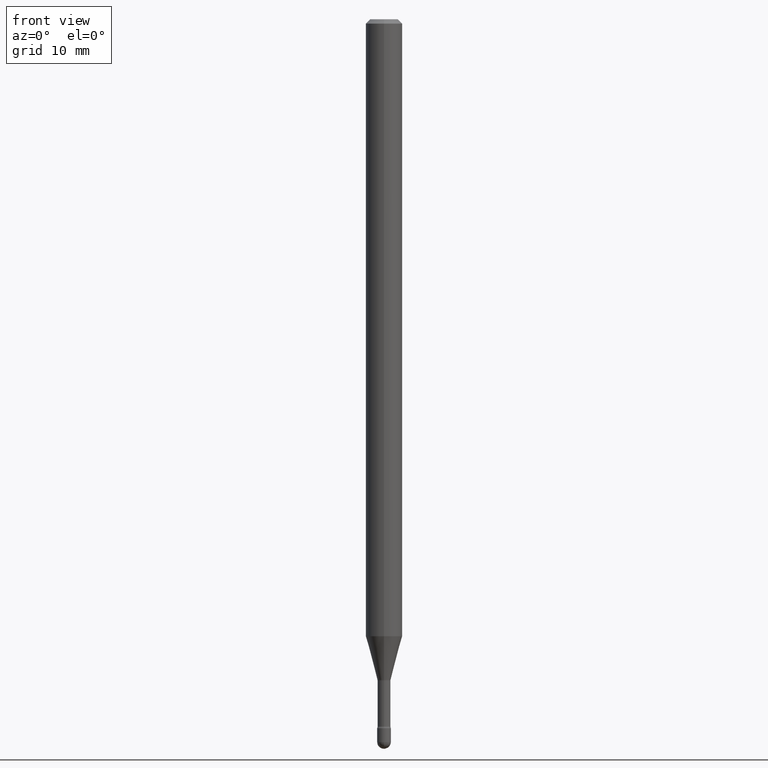
[diagram: clean part render]
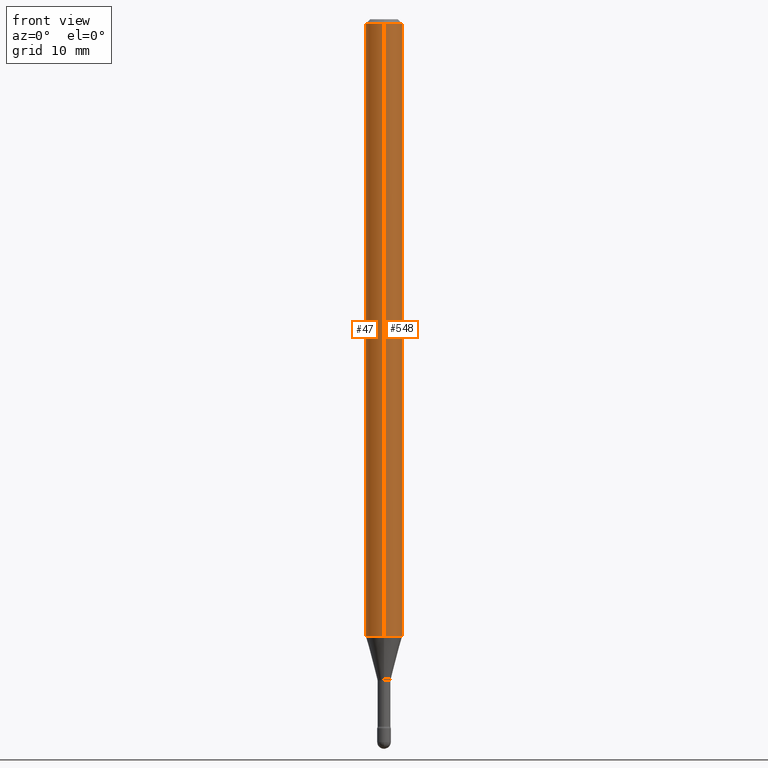
[diagram: same view with one multi-face feature highlighted, each face labeled with its STEP entity id]
A machine part, front view. The highlighted faces form ONE feature: a constant-radius fillet chain: 2 tangent blend faces with common blend radius 1.5875 mm. The faces share edges in the B-rep.
Their STEP definitions:
[1] entity #47 (Cylinder):
#24 = DIRECTION ( 'NONE',  ( -6.982962677686265922E-15, -1.000000000000000000, 3.483106191921935554E-15 ) ) ;
#25 = LINE ( 'NONE', #451, #334 ) ;
#47 = ADVANCED_FACE ( 'NONE', ( #459 ), #72, .T. ) ;
#55 = ORIENTED_EDGE ( 'NONE', *, *, #465, .F. ) ;
#72 = CYLINDRICAL_SURFACE ( 'NONE', #226, 0.06250000000000000000 ) ;
#114 = CARTESIAN_POINT ( 'NONE',  ( 5.170246277632214068E-29, -7.381813978771733326E-15, -2.114225147374217961 ) ) ;
#116 = CIRCLE ( 'NONE', #365, 0.06250000000000000000 ) ;
#123 = EDGE_CURVE ( 'NONE', #328, #302, #25, .T. ) ;
#126 = DIRECTION ( 'NONE',  ( -2.445456806742389886E-29, 3.491498522728124281E-15, 1.000000000000000000 ) ) ;
#155 = VERTEX_POINT ( 'NONE', #545 ) ;
#169 = DIRECTION ( 'NONE',  ( -2.445456806742390166E-29, 3.491498522728124281E-15, 1.000000000000000000 ) ) ;
#185 = LINE ( 'NONE', #215, #413 ) ;
#203 = CARTESIAN_POINT ( 'NONE',  ( -4.364351673553400976E-16, -0.06250000000000741074, -2.114225147374217517 ) ) ;
#215 = CARTESIAN_POINT ( 'NONE',  ( 4.440892098500625669E-16, 0.06250000000000000000, 2.598547412207382957E-16 ) ) ;
#216 = EDGE_LOOP ( 'NONE', ( #55, #557, #366, #441 ) ) ;
#226 = AXIS2_PLACEMENT_3D ( 'NONE', #292, #169, #336 ) ;
#232 = CARTESIAN_POINT ( 'NONE',  ( -4.364351673553912750E-16, -0.06250000000000005551, -0.01499999999999986587 ) ) ;
#247 = DIRECTION ( 'NONE',  ( -6.982962677686265922E-15, -1.000000000000000000, 4.370956789862821150E-15 ) ) ;
#276 = EDGE_CURVE ( 'NONE', #155, #328, #505, .T. ) ;
#283 = CARTESIAN_POINT ( 'NONE',  ( 3.668185210113605428E-31, -5.237247784092215166E-17, -0.01500000000000008271 ) ) ;
#287 = DIRECTION ( 'NONE',  ( -2.445456806742390166E-29, 3.491498522728124281E-15, 1.000000000000000000 ) ) ;
#292 = CARTESIAN_POINT ( 'NONE',  ( -1.169113584055446105E-44, 1.669184350826100908E-30, 4.780733988912460139E-16 ) ) ;
#302 = VERTEX_POINT ( 'NONE', #232 ) ;
#328 = VERTEX_POINT ( 'NONE', #203 ) ;
#334 = VECTOR ( 'NONE', #126, 39.37007874015748143 ) ;
#336 = DIRECTION ( 'NONE',  ( -6.982962677686265922E-15, -1.000000000000000000, 3.491498522728124676E-15 ) ) ;
#353 = DIRECTION ( 'NONE',  ( -2.445456806742389886E-29, 3.491498522728124281E-15, 1.000000000000000000 ) ) ;
#365 = AXIS2_PLACEMENT_3D ( 'NONE', #283, #403, #24 ) ;
#366 = ORIENTED_EDGE ( 'NONE', *, *, #123, .T. ) ;
#369 = VERTEX_POINT ( 'NONE', #379 ) ;
#374 = EDGE_CURVE ( 'NONE', #369, #302, #116, .T. ) ;
#379 = CARTESIAN_POINT ( 'NONE',  ( 4.440892098501146810E-16, 0.06249999999999995837, -0.01500000000000030129 ) ) ;
#403 = DIRECTION ( 'NONE',  ( -2.445456806742390166E-29, 3.491498522728124281E-15, 1.000000000000000000 ) ) ;
#413 = VECTOR ( 'NONE', #353, 39.37007874015748143 ) ;
#440 = AXIS2_PLACEMENT_3D ( 'NONE', #114, #287, #247 ) ;
#441 = ORIENTED_EDGE ( 'NONE', *, *, #374, .F. ) ;
#451 = CARTESIAN_POINT ( 'NONE',  ( -4.364351673553916201E-16, -0.06250000000000000000, 6.962920565617538308E-16 ) ) ;
#459 = FACE_OUTER_BOUND ( 'NONE', #216, .T. ) ;
#465 = EDGE_CURVE ( 'NONE', #155, #369, #185, .T. ) ;
#505 = CIRCLE ( 'NONE', #440, 0.06250000000000000000 ) ;
#545 = CARTESIAN_POINT ( 'NONE',  ( 4.440892098501140893E-16, 0.06249999999999258926, -2.114225147374217961 ) ) ;
#557 = ORIENTED_EDGE ( 'NONE', *, *, #276, .T. ) ;
[2] entity #548 (Cylinder):
#25 = LINE ( 'NONE', #451, #334 ) ;
#92 = DIRECTION ( 'NONE',  ( -6.982962677686265922E-15, -1.000000000000000000, 3.483106191921935554E-15 ) ) ;
#98 = CARTESIAN_POINT ( 'NONE',  ( -1.169113584055446105E-44, 1.669184350826100908E-30, 4.780733988912460139E-16 ) ) ;
#123 = EDGE_CURVE ( 'NONE', #328, #302, #25, .T. ) ;
#126 = DIRECTION ( 'NONE',  ( -2.445456806742389886E-29, 3.491498522728124281E-15, 1.000000000000000000 ) ) ;
#131 = DIRECTION ( 'NONE',  ( -2.445456806742390166E-29, 3.491498522728124281E-15, 1.000000000000000000 ) ) ;
#155 = VERTEX_POINT ( 'NONE', #545 ) ;
#172 = CARTESIAN_POINT ( 'NONE',  ( 5.170246277632214068E-29, -7.381813978771733326E-15, -2.114225147374217961 ) ) ;
#185 = LINE ( 'NONE', #215, #413 ) ;
#199 = CIRCLE ( 'NONE', #522, 0.06250000000000000000 ) ;
#203 = CARTESIAN_POINT ( 'NONE',  ( -4.364351673553400976E-16, -0.06250000000000741074, -2.114225147374217517 ) ) ;
#215 = CARTESIAN_POINT ( 'NONE',  ( 4.440892098500625669E-16, 0.06250000000000000000, 2.598547412207382957E-16 ) ) ;
#232 = CARTESIAN_POINT ( 'NONE',  ( -4.364351673553912750E-16, -0.06250000000000005551, -0.01499999999999986587 ) ) ;
#240 = ORIENTED_EDGE ( 'NONE', *, *, #282, .T. ) ;
#244 = AXIS2_PLACEMENT_3D ( 'NONE', #98, #532, #275 ) ;
#275 = DIRECTION ( 'NONE',  ( -6.982962677686265922E-15, -1.000000000000000000, 3.491498522728124676E-15 ) ) ;
#282 = EDGE_CURVE ( 'NONE', #328, #155, #199, .T. ) ;
#300 = EDGE_LOOP ( 'NONE', ( #240, #560, #401, #342 ) ) ;
#301 = CARTESIAN_POINT ( 'NONE',  ( 3.668185210113605428E-31, -5.237247784092215166E-17, -0.01500000000000008271 ) ) ;
#302 = VERTEX_POINT ( 'NONE', #232 ) ;
#315 = FACE_OUTER_BOUND ( 'NONE', #300, .T. ) ;
#328 = VERTEX_POINT ( 'NONE', #203 ) ;
#334 = VECTOR ( 'NONE', #126, 39.37007874015748143 ) ;
#342 = ORIENTED_EDGE ( 'NONE', *, *, #123, .F. ) ;
#353 = DIRECTION ( 'NONE',  ( -2.445456806742389886E-29, 3.491498522728124281E-15, 1.000000000000000000 ) ) ;
#369 = VERTEX_POINT ( 'NONE', #379 ) ;
#379 = CARTESIAN_POINT ( 'NONE',  ( 4.440892098501146810E-16, 0.06249999999999995837, -0.01500000000000030129 ) ) ;
#401 = ORIENTED_EDGE ( 'NONE', *, *, #502, .F. ) ;
#413 = VECTOR ( 'NONE', #353, 39.37007874015748143 ) ;
#419 = DIRECTION ( 'NONE',  ( -6.982962677686265922E-15, -1.000000000000000000, 4.370956789862821150E-15 ) ) ;
#451 = CARTESIAN_POINT ( 'NONE',  ( -4.364351673553916201E-16, -0.06250000000000000000, 6.962920565617538308E-16 ) ) ;
#465 = EDGE_CURVE ( 'NONE', #155, #369, #185, .T. ) ;
#479 = DIRECTION ( 'NONE',  ( -2.445456806742390166E-29, 3.491498522728124281E-15, 1.000000000000000000 ) ) ;
#490 = CYLINDRICAL_SURFACE ( 'NONE', #244, 0.06250000000000000000 ) ;
#491 = CIRCLE ( 'NONE', #550, 0.06250000000000000000 ) ;
#502 = EDGE_CURVE ( 'NONE', #302, #369, #491, .T. ) ;
#522 = AXIS2_PLACEMENT_3D ( 'NONE', #172, #131, #419 ) ;
#532 = DIRECTION ( 'NONE',  ( -2.445456806742390166E-29, 3.491498522728124281E-15, 1.000000000000000000 ) ) ;
#545 = CARTESIAN_POINT ( 'NONE',  ( 4.440892098501140893E-16, 0.06249999999999258926, -2.114225147374217961 ) ) ;
#548 = ADVANCED_FACE ( 'NONE', ( #315 ), #490, .T. ) ;
#550 = AXIS2_PLACEMENT_3D ( 'NONE', #301, #479, #92 ) ;
#560 = ORIENTED_EDGE ( 'NONE', *, *, #465, .T. ) ;